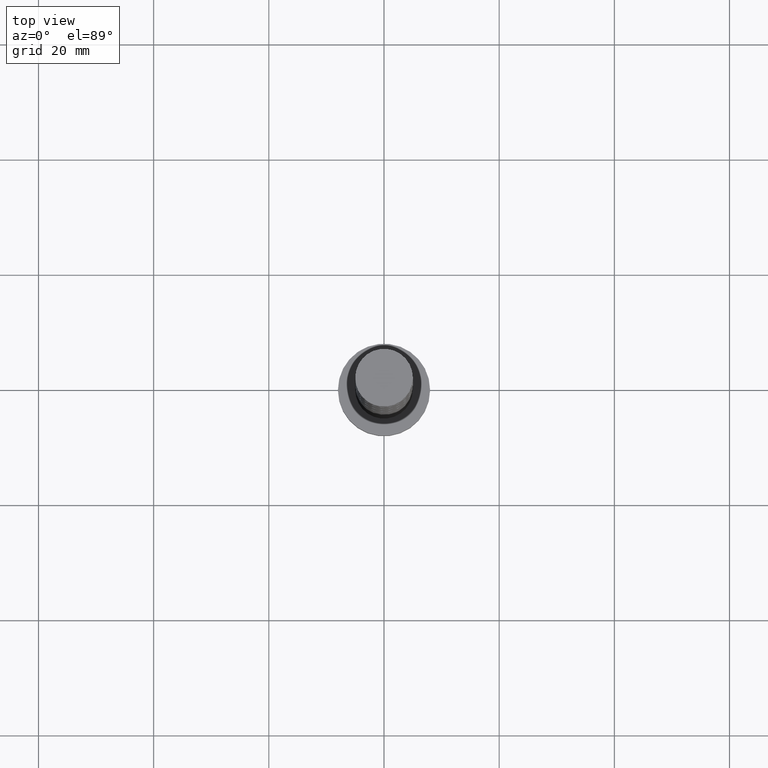
[diagram: clean part render]
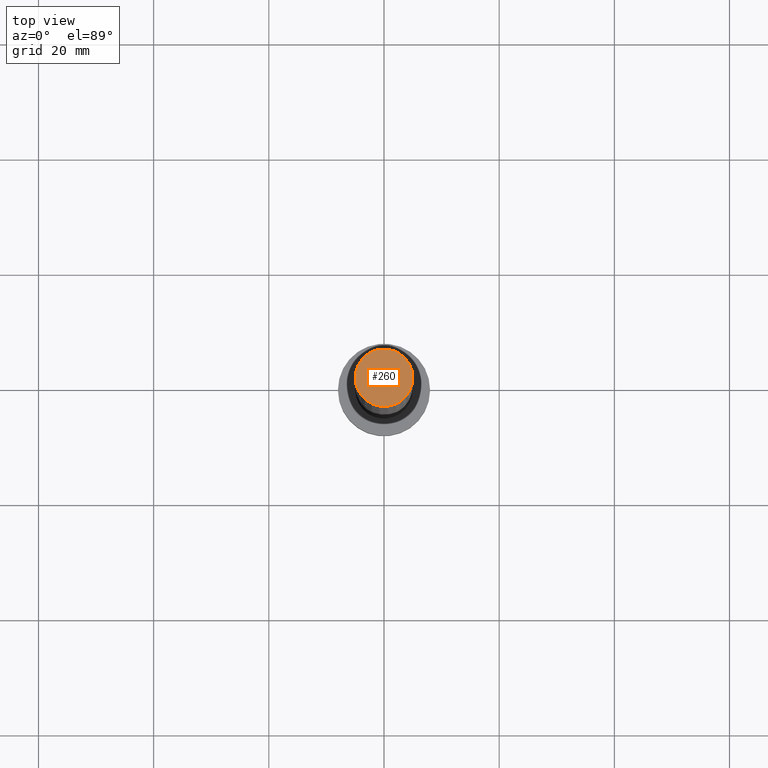
[diagram: same view with one face highlighted and labeled with its STEP entity id]
A machine part, top view. The second image highlights one B-rep face of the part: STEP entity #260.
In plain terms, the highlighted planar face has unit normal (0, 0, 1).
Its self-contained STEP definition (entity closure, byte-faithful):
#3 = EDGE_CURVE ( 'NONE', #1323, #316, #156, .T. ) ;
#17 = DIRECTION ( 'NONE',  ( 0.000000000000000000, 0.000000000000000000, 1.000000000000000000 ) ) ;
#27 = DIRECTION ( 'NONE',  ( 0.000000000000000000, 0.000000000000000000, 1.000000000000000000 ) ) ;
#106 = AXIS2_PLACEMENT_3D ( 'NONE', #867, #149, #986 ) ;
#146 = DIRECTION ( 'NONE',  ( 1.000000000000000000, 0.000000000000000000, 0.000000000000000000 ) ) ;
#149 = DIRECTION ( 'NONE',  ( 0.000000000000000000, 0.000000000000000000, 1.000000000000000000 ) ) ;
#156 = CIRCLE ( 'NONE', #1162, 5.000000000000000888 ) ;
#163 = AXIS2_PLACEMENT_3D ( 'NONE', #1340, #17, #495 ) ;
#260 = ADVANCED_FACE ( 'NONE', ( #518 ), #1493, .T. ) ;
#264 = ORIENTED_EDGE ( 'NONE', *, *, #791, .T. ) ;
#316 = VERTEX_POINT ( 'NONE', #878 ) ;
#495 = DIRECTION ( 'NONE',  ( 1.000000000000000000, 0.000000000000000000, 0.000000000000000000 ) ) ;
#518 = FACE_OUTER_BOUND ( 'NONE', #1338, .T. ) ;
#764 = CIRCLE ( 'NONE', #163, 5.000000000000000888 ) ;
#791 = EDGE_CURVE ( 'NONE', #316, #1323, #764, .T. ) ;
#867 = CARTESIAN_POINT ( 'NONE',  ( 0.000000000000000000, 0.000000000000000000, 125.0000000000000000 ) ) ;
#878 = CARTESIAN_POINT ( 'NONE',  ( 5.000000000000000888, 6.123233995736767268E-16, 125.0000000000000000 ) ) ;
#986 = DIRECTION ( 'NONE',  ( 1.000000000000000000, 0.000000000000000000, -0.000000000000000000 ) ) ;
#1068 = CARTESIAN_POINT ( 'NONE',  ( 0.000000000000000000, 0.000000000000000000, 125.0000000000000000 ) ) ;
#1084 = CARTESIAN_POINT ( 'NONE',  ( -5.000000000000000888, 0.000000000000000000, 125.0000000000000000 ) ) ;
#1162 = AXIS2_PLACEMENT_3D ( 'NONE', #1068, #27, #146 ) ;
#1323 = VERTEX_POINT ( 'NONE', #1084 ) ;
#1338 = EDGE_LOOP ( 'NONE', ( #1416, #264 ) ) ;
#1340 = CARTESIAN_POINT ( 'NONE',  ( 0.000000000000000000, 0.000000000000000000, 125.0000000000000000 ) ) ;
#1416 = ORIENTED_EDGE ( 'NONE', *, *, #3, .T. ) ;
#1493 = PLANE ( 'NONE',  #106 ) ;